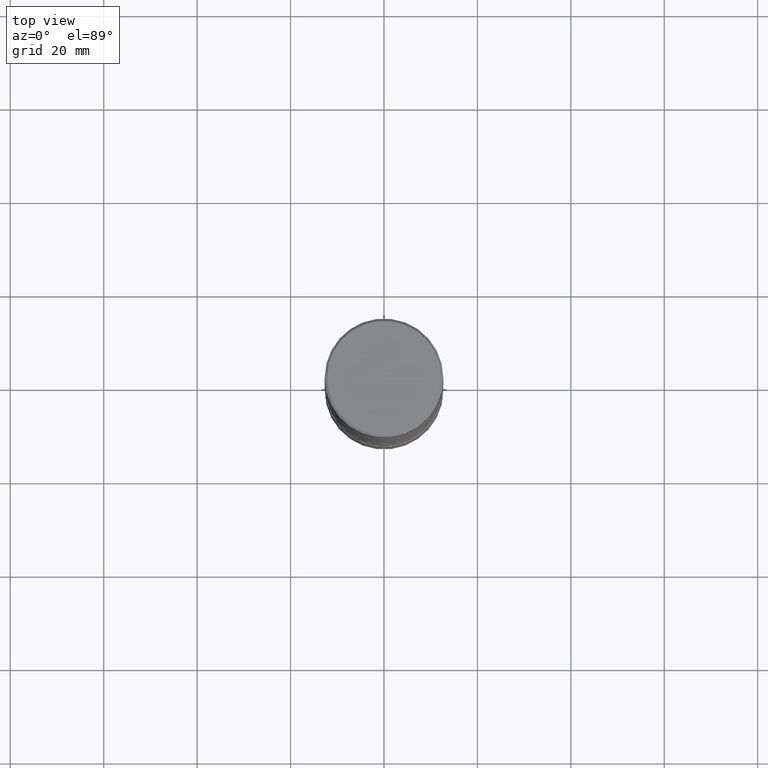
[diagram: clean part render]
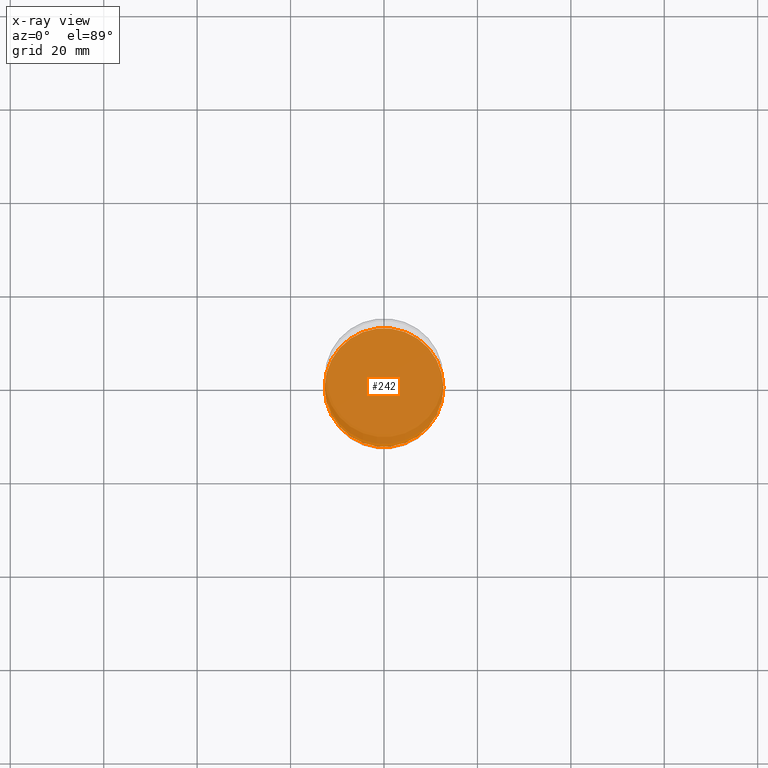
[diagram: x-ray — body ghosted, one internal face saturated and labeled with its STEP entity id]
A machine part, top view, then the same camera in x-ray: the body is ghosted and one INTERNAL B-rep face — a face not visible from any outside direction — is saturated and labeled: STEP entity #242.
In plain terms, the highlighted planar face has unit normal (0, -0, -1).
Its self-contained STEP definition (entity closure, byte-faithful):
#12 = CARTESIAN_POINT ( 'NONE',  ( 0.5000000000000006661, -2.007601769834807990E-14, -4.750000000000000000 ) ) ;
#38 = DIRECTION ( 'NONE',  ( -1.000000000000000000, 6.982962677686265922E-15, -4.876176775795935793E-29 ) ) ;
#42 = CARTESIAN_POINT ( 'NONE',  ( 1.161597682937940108E-28, -1.658453635950494339E-14, -4.750000000000000000 ) ) ;
#52 = VERTEX_POINT ( 'NONE', #442 ) ;
#88 = DIRECTION ( 'NONE',  ( -2.445468806185136597E-29, 3.491481338843145583E-15, 1.000000000000000000 ) ) ;
#125 = EDGE_LOOP ( 'NONE', ( #296, #301 ) ) ;
#158 = PLANE ( 'NONE',  #211 ) ;
#211 = AXIS2_PLACEMENT_3D ( 'NONE', #344, #337, #38 ) ;
#219 = CARTESIAN_POINT ( 'NONE',  ( 1.161597682937940108E-28, -1.658453635950494339E-14, -4.750000000000000000 ) ) ;
#230 = DIRECTION ( 'NONE',  ( 1.000000000000000000, -6.982962677686265133E-15, 0.000000000000000000 ) ) ;
#242 = ADVANCED_FACE ( 'NONE', ( #430 ), #158, .F. ) ;
#263 = DIRECTION ( 'NONE',  ( 1.000000000000000000, -6.982962677686265133E-15, 0.000000000000000000 ) ) ;
#296 = ORIENTED_EDGE ( 'NONE', *, *, #440, .T. ) ;
#301 = ORIENTED_EDGE ( 'NONE', *, *, #448, .T. ) ;
#337 = DIRECTION ( 'NONE',  ( 2.438088387897960049E-29, -3.491481338843145188E-15, -1.000000000000000000 ) ) ;
#344 = CARTESIAN_POINT ( 'NONE',  ( 1.161597682937940108E-28, -1.658453635950494339E-14, -4.750000000000000000 ) ) ;
#345 = VERTEX_POINT ( 'NONE', #12 ) ;
#408 = CIRCLE ( 'NONE', #482, 0.5000000000000006661 ) ;
#430 = FACE_OUTER_BOUND ( 'NONE', #125, .T. ) ;
#440 = EDGE_CURVE ( 'NONE', #345, #52, #408, .T. ) ;
#442 = CARTESIAN_POINT ( 'NONE',  ( -0.5000000000000006661, -1.516162629739875255E-14, -4.750000000000000000 ) ) ;
#448 = EDGE_CURVE ( 'NONE', #52, #345, #553, .T. ) ;
#455 = AXIS2_PLACEMENT_3D ( 'NONE', #219, #88, #263 ) ;
#482 = AXIS2_PLACEMENT_3D ( 'NONE', #42, #531, #230 ) ;
#531 = DIRECTION ( 'NONE',  ( -2.445468806185136597E-29, 3.491481338843145583E-15, 1.000000000000000000 ) ) ;
#553 = CIRCLE ( 'NONE', #455, 0.5000000000000006661 ) ;